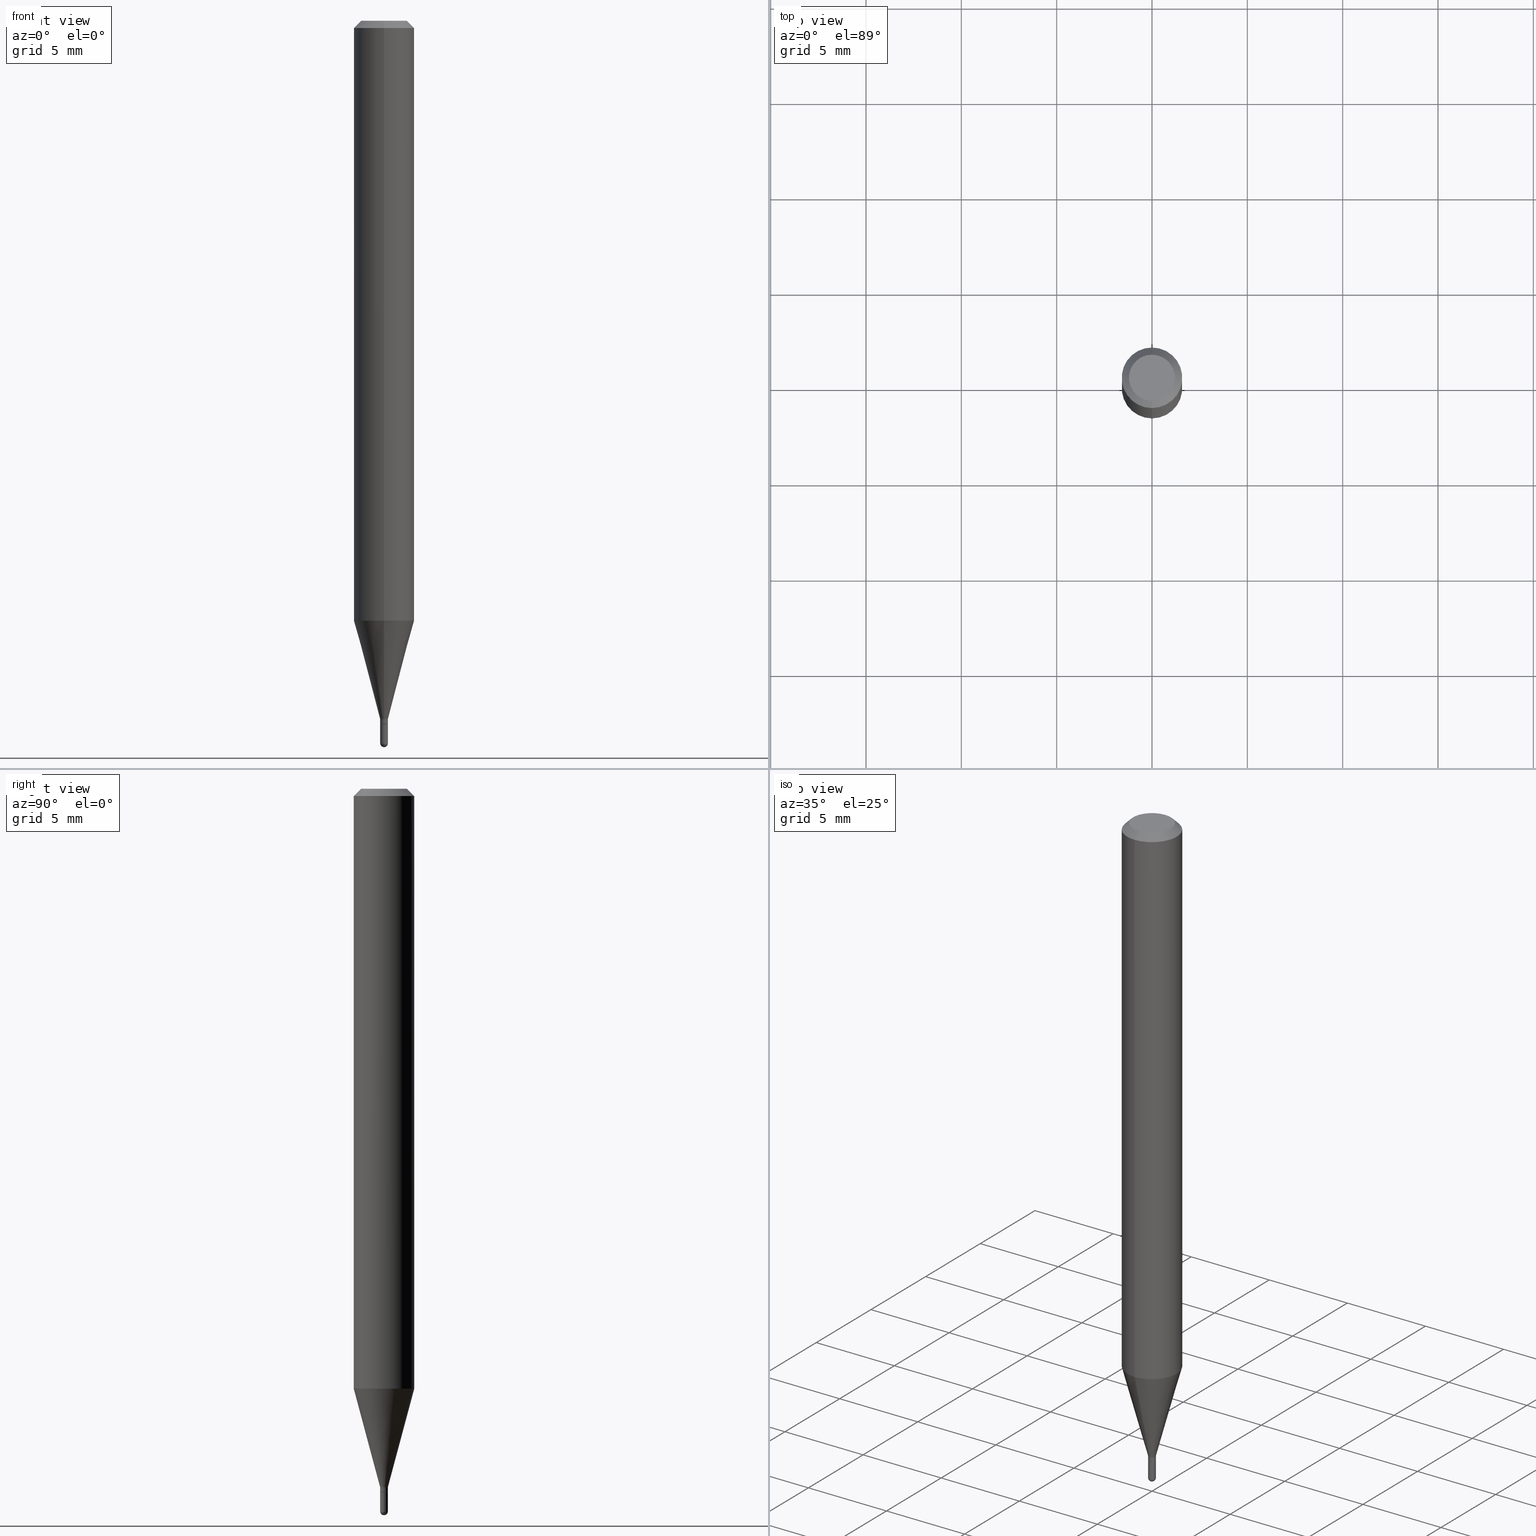
[diagram: canonical four-view strip — front | top / right | iso, engineering-drawing reading convention]
A machine part, canonical four-view strip (front | top / right | iso — engineering-drawing reading convention). The complete STEP part file that produces these views, byte-faithful:
ISO-10303-21;
HEADER;
FILE_DESCRIPTION (( 'STEP AP203' ),
    '1' );
FILE_NAME ('03151.STEP',
    '2024-03-08T18:21:46',
    ( '' ),
    ( '' ),
    'SwSTEP 2.0',
    'SolidWorks 2023',
    '' );
FILE_SCHEMA (( 'CONFIG_CONTROL_DESIGN' ));
ENDSEC;

DATA;
#1 = DIRECTION ( 'NONE',  ( -2.445468806185136877E-29, 3.491481338843145188E-15, 1.000000000000000000 ) ) ;
#2 = AXIS2_PLACEMENT_3D ( 'NONE', #432, #318, #216 ) ;
#3 = CARTESIAN_POINT ( 'NONE',  ( 0.000000000000000000, 0.000000000000000000, 0.000000000000000000 ) ) ;
#4 = AXIS2_PLACEMENT_3D ( 'NONE', #241, #128, #322 ) ;
#5 = EDGE_CURVE ( 'NONE', #29, #172, #358, .T. ) ;
#6 = CARTESIAN_POINT ( 'NONE',  ( 0.000000000000000000, 0.000000000000000000, 0.000000000000000000 ) ) ;
#7 = EDGE_LOOP ( 'NONE', ( #381, #251, #283, #338 ) ) ;
#8 = VERTEX_POINT ( 'NONE', #371 ) ;
#9 = CALENDAR_DATE ( 2024, 8, 3 ) ;
#10 = DIRECTION ( 'NONE',  ( 1.000000000000000000, -6.982962677686211490E-15, 0.000000000000000000 ) ) ;
#11 = ORIENTED_EDGE ( 'NONE', *, *, #93, .F. ) ;
#12 = EDGE_CURVE ( 'NONE', #157, #132, #222, .T. ) ;
#13 = DIRECTION ( 'NONE',  ( -2.445458081085281379E-29, 3.491496697796572887E-15, 1.000000000000000000 ) ) ;
#14 = DIRECTION ( 'NONE',  ( -2.445458081085281379E-29, 3.491496697796572887E-15, 1.000000000000000000 ) ) ;
#15 = AXIS2_PLACEMENT_3D ( 'NONE', #203, #321, #434 ) ;
#16 = COORDINATED_UNIVERSAL_TIME_OFFSET ( 5, 0, .BEHIND. ) ;
#17 = PERSON_AND_ORGANIZATION_ROLE ( 'creator' ) ;
#18 =( NAMED_UNIT ( * ) PLANE_ANGLE_UNIT ( ) SI_UNIT ( $, .RADIAN. ) );
#19 = CYLINDRICAL_SURFACE ( 'NONE', #196, 0.008000000000000000167 ) ;
#20 = AXIS2_PLACEMENT_3D ( 'NONE', #374, #180, #476 ) ;
#21 = AXIS2_PLACEMENT_3D ( 'NONE', #84, #236, #200 ) ;
#22 = PRODUCT ( '03151', '03151', '', ( #52 ) ) ;
#23 = CARTESIAN_POINT ( 'NONE',  ( -5.586370142145321943E-17, -0.008000000000005148826, -1.492000000000000437 ) ) ;
#24 = ADVANCED_FACE ( 'NONE', ( #474 ), #362, .T. ) ;
#25 = VECTOR ( 'NONE', #80, 39.37007874015748143 ) ;
#26 = LOCAL_TIME ( 13, 21, 46.00000000000000000, #491 ) ;
#27 = VERTEX_POINT ( 'NONE', #140 ) ;
#28 = EDGE_CURVE ( 'NONE', #85, #69, #94, .T. ) ;
#29 = VERTEX_POINT ( 'NONE', #91 ) ;
#30 = PRODUCT_RELATED_PRODUCT_CATEGORY ( 'detail', '', ( #22 ) ) ;
#31 = DIRECTION ( 'NONE',  ( 1.000000000000000000, -6.982962677686266711E-15, 4.876176775795935793E-29 ) ) ;
#32 = DIRECTION ( 'NONE',  ( -2.445458081085281379E-29, 3.491496697796572887E-15, 1.000000000000000000 ) ) ;
#33 = ORIENTED_EDGE ( 'NONE', *, *, #443, .F. ) ;
#34 = AXIS2_PLACEMENT_3D ( 'NONE', #171, #465, #150 ) ;
#35 = AXIS2_PLACEMENT_3D ( 'NONE', #463, #355, #126 ) ;
#36 = DIRECTION ( 'NONE',  ( -2.445458081085281379E-29, 3.491496697796572887E-15, 1.000000000000000000 ) ) ;
#37 = CARTESIAN_POINT ( 'NONE',  ( 4.440892098500930859E-16, 0.06249999999999995143, -0.01499999999999997863 ) ) ;
#38 = CARTESIAN_POINT ( 'NONE',  ( 3.647955325796880596E-29, -5.210269874993290915E-15, -1.491999999999999993 ) ) ;
#39 = DIRECTION ( 'NONE',  ( -2.445458081085281379E-29, 3.491496697796572887E-15, 1.000000000000000000 ) ) ;
#40 = VERTEX_POINT ( 'NONE', #294 ) ;
#41 = ORIENTED_EDGE ( 'NONE', *, *, #383, .F. ) ;
#42 = CC_DESIGN_PERSON_AND_ORGANIZATION_ASSIGNMENT ( #50, #327, ( #332 ) ) ;
#43 = DIRECTION ( 'NONE',  ( -2.445468806185136877E-29, 3.491481338843145188E-15, 1.000000000000000000 ) ) ;
#44 = DIRECTION ( 'NONE',  ( -6.982962677686265922E-15, -1.000000000000000000, 3.491496697796572887E-15 ) ) ;
#45 = CARTESIAN_POINT ( 'NONE',  ( 5.684341886084404481E-17, 0.007999999999994728342, -1.492000000000000437 ) ) ;
#46 = DIRECTION ( 'NONE',  ( -6.982962677686267499E-15, -1.000000000000000000, 0.000000000000000000 ) ) ;
#47 = ORIENTED_EDGE ( 'NONE', *, *, #348, .T. ) ;
#48 = CARTESIAN_POINT ( 'NONE',  ( -0.008000000000000000167, -5.082617111916303545E-15, -1.492000000000000437 ) ) ;
#49 = ORIENTED_EDGE ( 'NONE', *, *, #269, .F. ) ;
#50 = PERSON_AND_ORGANIZATION ( #398, #390 ) ;
#51 = DIRECTION ( 'NONE',  ( -2.445458081085281379E-29, 3.491496697796572887E-15, 1.000000000000000000 ) ) ;
#52 = MECHANICAL_CONTEXT ( 'NONE', #367, 'mechanical' ) ;
#53 = CLOSED_SHELL ( 'NONE', ( #24, #331, #344, #413, #323, #304, #364, #88, #261, #481, #500, #372 ) ) ;
#54 = AXIS2_PLACEMENT_3D ( 'NONE', #161, #36, #353 ) ;
#55 = DIRECTION ( 'NONE',  ( 1.000000000000000000, -6.982962677686211490E-15, 0.000000000000000000 ) ) ;
#56 = DIRECTION ( 'NONE',  ( 0.000000000000000000, 0.000000000000000000, 1.000000000000000000 ) ) ;
#57 = DIRECTION ( 'NONE',  ( -6.982962677686265922E-15, -1.000000000000000000, 0.000000000000000000 ) ) ;
#58 = ORIENTED_EDGE ( 'NONE', *, *, #93, .T. ) ;
#59 = EDGE_CURVE ( 'NONE', #246, #197, #141, .T. ) ;
#60 = DATE_TIME_ROLE ( 'creation_date' ) ;
#61 = EDGE_CURVE ( 'NONE', #422, #85, #401, .T. ) ;
#62 = PERSON_AND_ORGANIZATION ( #398, #390 ) ;
#63 = CARTESIAN_POINT ( 'NONE',  ( -4.287811248607203282E-16, -0.06250000000000005551, -0.01499999999999954321 ) ) ;
#64 = EDGE_CURVE ( 'NONE', #27, #227, #391, .T. ) ;
#65 = VECTOR ( 'NONE', #43, 39.37007874015748143 ) ;
#66 = DIRECTION ( 'NONE',  ( -2.445458081085281379E-29, 3.491496697796572887E-15, 1.000000000000000000 ) ) ;
#67 = CARTESIAN_POINT ( 'NONE',  ( 5.684341886084278756E-17, 0.007999999999994830691, -1.451500000000000457 ) ) ;
#68 = ORIENTED_EDGE ( 'NONE', *, *, #28, .T. ) ;
#69 = VERTEX_POINT ( 'NONE', #37 ) ;
#70 = CIRCLE ( 'NONE', #479, 0.007999999999999925573 ) ;
#71 = CIRCLE ( 'NONE', #311, 0.008000000000000000167 ) ;
#72 = CC_DESIGN_APPROVAL ( #340, ( #489 ) ) ;
#73 = APPROVAL_DATE_TIME ( #265, #340 ) ;
#74 = CARTESIAN_POINT ( 'NONE',  ( -5.586370142145434109E-17, -0.008000000000004959741, -1.441999999999999726 ) ) ;
#75 = ORIENTED_EDGE ( 'NONE', *, *, #473, .T. ) ;
#76 = DIRECTION ( 'NONE',  ( -1.000000000000000000, 6.982962677686265922E-15, -4.883557194083112340E-29 ) ) ;
#77 = EDGE_CURVE ( 'NONE', #197, #8, #424, .T. ) ;
#78 = CARTESIAN_POINT ( 'NONE',  ( -4.364351673553916201E-16, -0.06250000000000000000, 2.182185436122858054E-16 ) ) ;
#79 = CARTESIAN_POINT ( 'NONE',  ( 3.550820706580818935E-29, -5.069630904000248312E-15, -1.452000000000000179 ) ) ;
#80 = DIRECTION ( 'NONE',  ( -2.445458081085281379E-29, 3.491496697796572887E-15, 1.000000000000000000 ) ) ;
#81 = EDGE_CURVE ( 'NONE', #227, #190, #270, .T. ) ;
#82 = CIRCLE ( 'NONE', #151, 0.007999999999999923839 ) ;
#83 = AXIS2_PLACEMENT_3D ( 'NONE', #408, #149, #301 ) ;
#84 = CARTESIAN_POINT ( 'NONE',  ( 3.028952280476713504E-29, -4.324579090873010199E-15, -1.238603230987496584 ) ) ;
#85 = VERTEX_POINT ( 'NONE', #193 ) ;
#86 = PRODUCT_DEFINITION ( 'UNKNOWN', '', #332, #257 ) ;
#87 = EDGE_CURVE ( 'NONE', #490, #27, #354, .T. ) ;
#88 = ADVANCED_FACE ( 'NONE', ( #464 ), #308, .T. ) ;
#89 = DIRECTION ( 'NONE',  ( -6.982962677686265922E-15, -1.000000000000000000, 4.370956789862821150E-15 ) ) ;
#90 = ORIENTED_EDGE ( 'NONE', *, *, #12, .T. ) ;
#91 = CARTESIAN_POINT ( 'NONE',  ( 0.008000000000000000167, -5.195324232198600513E-15, -1.492000000000000437 ) ) ;
#92 = CARTESIAN_POINT ( 'NONE',  ( -5.586370142145429179E-17, -0.008000000000005020456, -1.451500000000000457 ) ) ;
#93 = EDGE_CURVE ( 'NONE', #69, #190, #378, .T. ) ;
#94 = LINE ( 'NONE', #218, #388 ) ;
#95 = DIRECTION ( 'NONE',  ( -6.982962677686265922E-15, -1.000000000000000000, 3.483106191921935554E-15 ) ) ;
#96 = AXIS2_PLACEMENT_3D ( 'NONE', #79, #428, #234 ) ;
#97 = ORIENTED_EDGE ( 'NONE', *, *, #269, .T. ) ;
#98 = DIMENSIONAL_EXPONENTS ( 1.000000000000000000, 0.000000000000000000, 0.000000000000000000, 0.000000000000000000, 0.000000000000000000, 0.000000000000000000, 0.000000000000000000 ) ;
#99 = EDGE_CURVE ( 'NONE', #508, #217, #328, .T. ) ;
#100 = CALENDAR_DATE ( 2024, 8, 3 ) ;
#101 = FACE_OUTER_BOUND ( 'NONE', #271, .T. ) ;
#102 = DATE_TIME_ROLE ( 'classification_date' ) ;
#103 = CARTESIAN_POINT ( 'NONE',  ( 3.549582404695286785E-29, -5.067907456851727530E-15, -1.451500000000000457 ) ) ;
#104 = FACE_OUTER_BOUND ( 'NONE', #421, .T. ) ;
#105 = AXIS2_PLACEMENT_3D ( 'NONE', #215, #175, #333 ) ;
#106 = CONICAL_SURFACE ( 'NONE', #15, 0.007999999999999923839, 0.2617993877991505736 ) ;
#107 = ADVANCED_BREP_SHAPE_REPRESENTATION ( '03151', ( #444, #448, #226 ), #412 ) ;
#108 = ADVANCED_FACE ( 'NONE', ( #274 ), #229, .T. ) ;
#109 = APPROVAL_STATUS ( 'not_yet_approved' ) ;
#110 = ORIENTED_EDGE ( 'NONE', *, *, #81, .T. ) ;
#111 = PERSON_AND_ORGANIZATION ( #398, #390 ) ;
#112 = CARTESIAN_POINT ( 'NONE',  ( -5.586370142148960564E-17, -0.007999999999999925573, 2.793197358237232144E-17 ) ) ;
#113 = CIRCLE ( 'NONE', #494, 0.007999999999999877001 ) ;
#114 = CIRCLE ( 'NONE', #54, 0.007500000000000001457 ) ;
#115 = AXIS2_PLACEMENT_3D ( 'NONE', #239, #471, #89 ) ;
#116 = ORIENTED_EDGE ( 'NONE', *, *, #156, .F. ) ;
#117 = CARTESIAN_POINT ( 'NONE',  ( 0.000000000000000000, 0.000000000000000000, 0.000000000000000000 ) ) ;
#118 = DIRECTION ( 'NONE',  ( -2.445458081085281379E-29, 3.491496697796572887E-15, 1.000000000000000000 ) ) ;
#119 = ORIENTED_EDGE ( 'NONE', *, *, #61, .T. ) ;
#120 = AXIS2_PLACEMENT_3D ( 'NONE', #511, #133, #286 ) ;
#121 = ORIENTED_EDGE ( 'NONE', *, *, #291, .F. ) ;
#122 = CARTESIAN_POINT ( 'NONE',  ( 5.506706202144299774E-17, 0.007499999999994930860, -1.452000000000000179 ) ) ;
#123 = DIRECTION ( 'NONE',  ( -2.445458081085281379E-29, 3.491496697796572887E-15, 1.000000000000000000 ) ) ;
#124 = ORIENTED_EDGE ( 'NONE', *, *, #210, .T. ) ;
#125 = DIRECTION ( 'NONE',  ( 6.982962677686265922E-15, 1.000000000000000000, -3.483106191921935554E-15 ) ) ;
#126 = DIRECTION ( 'NONE',  ( -6.982962677686265922E-15, -1.000000000000000000, 0.000000000000000000 ) ) ;
#127 = VECTOR ( 'NONE', #214, 39.37007874015748143 ) ;
#128 = DIRECTION ( 'NONE',  ( 2.445458081085281379E-29, -3.491496697796572887E-15, -1.000000000000000000 ) ) ;
#129 = CARTESIAN_POINT ( 'NONE',  ( 0.008000000000000000167, -5.125494605421738004E-15, -1.452000000000000179 ) ) ;
#130 = CARTESIAN_POINT ( 'NONE',  ( 0.000000000000000000, 0.000000000000000000, 0.000000000000000000 ) ) ;
#131 = DIRECTION ( 'NONE',  ( 1.000000000000000000, -6.982962677686211490E-15, 0.000000000000000000 ) ) ;
#132 = VERTEX_POINT ( 'NONE', #351 ) ;
#133 = DIRECTION ( 'NONE',  ( -2.445458081085281379E-29, 3.491496697796572887E-15, 1.000000000000000000 ) ) ;
#134 = DIRECTION ( 'NONE',  ( -2.445468806185136597E-29, 3.491481338843145583E-15, 1.000000000000000000 ) ) ;
#135 = ORIENTED_EDGE ( 'NONE', *, *, #28, .F. ) ;
#136 = ORIENTED_EDGE ( 'NONE', *, *, #386, .F. ) ;
#137 = ORIENTED_EDGE ( 'NONE', *, *, #59, .T. ) ;
#138 = DIRECTION ( 'NONE',  ( -6.982962677686265922E-15, -1.000000000000000000, 3.491496697796572493E-15 ) ) ;
#139 = PERSON_AND_ORGANIZATION_ROLE ( 'creator' ) ;
#140 = CARTESIAN_POINT ( 'NONE',  ( -5.586370142145434109E-17, -0.008000000000004959741, -1.441999999999999726 ) ) ;
#141 = LINE ( 'NONE', #445, #25 ) ;
#142 = ORIENTED_EDGE ( 'NONE', *, *, #61, .F. ) ;
#143 = APPLICATION_PROTOCOL_DEFINITION ( 'international standard', 'config_control_design', 1994, #367 ) ;
#144 = CARTESIAN_POINT ( 'NONE',  ( -5.856612206738854451E-45, 8.361763523269612628E-31, 2.394893722381746862E-16 ) ) ;
#145 = CC_DESIGN_PERSON_AND_ORGANIZATION_ASSIGNMENT ( #447, #17, ( #332 ) ) ;
#146 = PLANE ( 'NONE',  #423 ) ;
#147 = PERSON_AND_ORGANIZATION_ROLE ( 'classification_officer' ) ;
#148 = CIRCLE ( 'NONE', #174, 0.007500000000000001457 ) ;
#149 = DIRECTION ( 'NONE',  ( -2.445458081085281379E-29, 3.491496697796572887E-15, 1.000000000000000000 ) ) ;
#150 = DIRECTION ( 'NONE',  ( 1.000000000000000000, -6.982962677686211490E-15, 0.000000000000000000 ) ) ;
#151 = AXIS2_PLACEMENT_3D ( 'NONE', #505, #51, #320 ) ;
#152 = CIRCLE ( 'NONE', #452, 0.007999999999999923839 ) ;
#153 = ORIENTED_EDGE ( 'NONE', *, *, #156, .T. ) ;
#154 = ORIENTED_EDGE ( 'NONE', *, *, #250, .T. ) ;
#155 = CARTESIAN_POINT ( 'NONE',  ( 3.668187121627863477E-31, -5.237245046694775835E-17, -0.01499999999999976179 ) ) ;
#156 = EDGE_CURVE ( 'NONE', #197, #27, #82, .T. ) ;
#157 = VERTEX_POINT ( 'NONE', #48 ) ;
#158 = DIRECTION ( 'NONE',  ( -6.982962677686265922E-15, -1.000000000000000000, 3.483106191921935554E-15 ) ) ;
#159 = CIRCLE ( 'NONE', #164, 0.008000000000000000167 ) ;
#160 = ORIENTED_EDGE ( 'NONE', *, *, #295, .F. ) ;
#161 = CARTESIAN_POINT ( 'NONE',  ( 3.550805133735828966E-29, -5.069653205200624749E-15, -1.452000000000000179 ) ) ;
#162 = FACE_OUTER_BOUND ( 'NONE', #202, .T. ) ;
#163 = DIRECTION ( 'NONE',  ( -2.445458081085281099E-29, 3.491496697796572887E-15, 1.000000000000000000 ) ) ;
#164 = AXIS2_PLACEMENT_3D ( 'NONE', #395, #134, #10 ) ;
#165 = AXIS2_PLACEMENT_3D ( 'NONE', #3, #363, #400 ) ;
#166 = CYLINDRICAL_SURFACE ( 'NONE', #299, 0.06250000000000000000 ) ;
#167 = ORIENTED_EDGE ( 'NONE', *, *, #5, .T. ) ;
#168 = FACE_OUTER_BOUND ( 'NONE', #201, .T. ) ;
#169 = CARTESIAN_POINT ( 'NONE',  ( 3.316907271900976096E-16, 0.04749999999999999362, -4.610140702624983500E-17 ) ) ;
#170 = DIRECTION ( 'NONE',  ( 1.000000000000000000, -7.105427357601001070E-15, 4.926315508542082329E-29 ) ) ;
#171 = CARTESIAN_POINT ( 'NONE',  ( 3.648639458828225116E-29, -5.209290157553974120E-15, -1.492000000000000437 ) ) ;
#172 = VERTEX_POINT ( 'NONE', #45 ) ;
#173 = VERTEX_POINT ( 'NONE', #129 ) ;
#174 = AXIS2_PLACEMENT_3D ( 'NONE', #410, #66, #57 ) ;
#175 = DIRECTION ( 'NONE',  ( 1.000000000000000000, -6.982962677686265922E-15, 4.883557194083112340E-29 ) ) ;
#176 = CARTESIAN_POINT ( 'NONE',  ( 3.526350552924974695E-29, -5.034738238222656705E-15, -1.441999999999999726 ) ) ;
#177 = EDGE_CURVE ( 'NONE', #8, #69, #240, .T. ) ;
#178 = DATE_AND_TIME ( #100, #188 ) ;
#179 = DATE_AND_TIME ( #334, #262 ) ;
#180 = DIRECTION ( 'NONE',  ( -2.445458081085281379E-29, 3.491496697796572887E-15, 1.000000000000000000 ) ) ;
#181 = CARTESIAN_POINT ( 'NONE',  ( -0.008000000000000000167, 5.684341886080801605E-17, -3.935148072203924667E-31 ) ) ;
#182 = COORDINATED_UNIVERSAL_TIME_OFFSET ( 5, 0, .BEHIND. ) ;
#183 = CIRCLE ( 'NONE', #96, 0.008000000000000000167 ) ;
#184 = ADVANCED_FACE ( 'NONE', ( #399 ), #437, .T. ) ;
#185 = ORIENTED_EDGE ( 'NONE', *, *, #5, .F. ) ;
#186 = EDGE_CURVE ( 'NONE', #490, #246, #430, .T. ) ;
#187 = EDGE_CURVE ( 'NONE', #508, #172, #113, .T. ) ;
#188 = LOCAL_TIME ( 13, 21, 46.00000000000000000, #16 ) ;
#189 = CC_DESIGN_DATE_AND_TIME_ASSIGNMENT ( #446, #102, ( #489 ) ) ;
#190 = VERTEX_POINT ( 'NONE', #393 ) ;
#191 = ORIENTED_EDGE ( 'NONE', *, *, #59, .F. ) ;
#192 = DIRECTION ( 'NONE',  ( -6.982962677686266711E-15, -1.000000000000000000, 3.491496697796572493E-15 ) ) ;
#193 = CARTESIAN_POINT ( 'NONE',  ( 3.840629472727447874E-16, 0.04749999999999999362, 7.364327909283752044E-17 ) ) ;
#194 = EDGE_LOOP ( 'NONE', ( #97, #90, #33, #314, #167 ) ) ;
#195 = AXIS2_PLACEMENT_3D ( 'NONE', #457, #118, #192 ) ;
#196 = AXIS2_PLACEMENT_3D ( 'NONE', #492, #466, #361 ) ;
#197 = VERTEX_POINT ( 'NONE', #204 ) ;
#198 = CARTESIAN_POINT ( 'NONE',  ( 3.550805133735828966E-29, -5.069653205200624749E-15, -1.452000000000000179 ) ) ;
#199 = EDGE_LOOP ( 'NONE', ( #268, #488, #110, #11 ) ) ;
#200 = DIRECTION ( 'NONE',  ( -6.982962677686265922E-15, -1.000000000000000000, 4.370956789862821150E-15 ) ) ;
#201 = EDGE_LOOP ( 'NONE', ( #142, #376, #287, #135 ) ) ;
#202 = EDGE_LOOP ( 'NONE', ( #472, #206, #124, #211 ) ) ;
#203 = CARTESIAN_POINT ( 'NONE',  ( 3.526350552924974695E-29, -5.034738238222656705E-15, -1.441999999999999726 ) ) ;
#204 = CARTESIAN_POINT ( 'NONE',  ( 2.504663143554679306E-16, 0.007999999999994889671, -1.441999999999999726 ) ) ;
#205 = FACE_OUTER_BOUND ( 'NONE', #273, .T. ) ;
#206 = ORIENTED_EDGE ( 'NONE', *, *, #295, .T. ) ;
#207 = AXIS2_PLACEMENT_3D ( 'NONE', #38, #76, #456 ) ;
#208 = CC_DESIGN_APPROVAL ( #228, ( #332 ) ) ;
#209 = LINE ( 'NONE', #365, #65 ) ;
#210 = EDGE_CURVE ( 'NONE', #40, #490, #470, .T. ) ;
#211 = ORIENTED_EDGE ( 'NONE', *, *, #238, .F. ) ;
#212 = CARTESIAN_POINT ( 'NONE',  ( 3.668187121627863477E-31, -5.237245046694775835E-17, -0.01499999999999976179 ) ) ;
#213 = ORIENTED_EDGE ( 'NONE', *, *, #187, .T. ) ;
#214 = DIRECTION ( 'NONE',  ( -2.445458081085281379E-29, 3.491496697796572887E-15, 1.000000000000000000 ) ) ;
#215 = CARTESIAN_POINT ( 'NONE',  ( 3.647955325796880596E-29, -5.210269874993290915E-15, -1.491999999999999993 ) ) ;
#216 = DIRECTION ( 'NONE',  ( -6.982962677686265922E-15, -1.000000000000000000, 0.000000000000000000 ) ) ;
#217 = VERTEX_POINT ( 'NONE', #23 ) ;
#218 = CARTESIAN_POINT ( 'NONE',  ( 4.364351673553919652E-16, 0.06249999999999995143, -0.01499999999999997863 ) ) ;
#219 = VECTOR ( 'NONE', #224, 39.37007874015748143 ) ;
#220 = DIRECTION ( 'NONE',  ( 1.000000000000000000, 0.000000000000000000, 0.000000000000000000 ) ) ;
#221 = DIRECTION ( 'NONE',  ( 6.982962677686265922E-15, 1.000000000000000000, -3.491496697796572887E-15 ) ) ;
#222 = LINE ( 'NONE', #181, #235 ) ;
#223 = APPROVAL_ROLE ( '' ) ;
#224 = DIRECTION ( 'NONE',  ( -4.851104656540964275E-15, -0.7071067811865500152, -0.7071067811865450192 ) ) ;
#225 = VECTOR ( 'NONE', #266, 39.37007874015748854 ) ;
#226 = AXIS2_PLACEMENT_3D ( 'NONE', #255, #56, #220 ) ;
#227 = VERTEX_POINT ( 'NONE', #345 ) ;
#228 = APPROVAL ( #482, 'UNSPECIFIED' ) ;
#229 = CYLINDRICAL_SURFACE ( 'NONE', #417, 0.008000000000000000167 ) ;
#230 = ORIENTED_EDGE ( 'NONE', *, *, #99, .F. ) ;
#231 = DIRECTION ( 'NONE',  ( -2.445468806185136597E-29, 3.491481338843145583E-15, 1.000000000000000000 ) ) ;
#232 = ORIENTED_EDGE ( 'NONE', *, *, #509, .F. ) ;
#233 = DIRECTION ( 'NONE',  ( -2.445458081085281379E-29, 3.491496697796572887E-15, 1.000000000000000000 ) ) ;
#234 = DIRECTION ( 'NONE',  ( 1.000000000000000000, -6.982962677686211490E-15, 0.000000000000000000 ) ) ;
#235 = VECTOR ( 'NONE', #1, 39.37007874015748143 ) ;
#236 = DIRECTION ( 'NONE',  ( -2.445458081085281379E-29, 3.491496697796572887E-15, 1.000000000000000000 ) ) ;
#237 = ORIENTED_EDGE ( 'NONE', *, *, #380, .T. ) ;
#238 = EDGE_CURVE ( 'NONE', #246, #490, #70, .T. ) ;
#239 = CARTESIAN_POINT ( 'NONE',  ( 3.028952280476713504E-29, -4.324579090873010199E-15, -1.238603230987496584 ) ) ;
#240 = LINE ( 'NONE', #325, #127 ) ;
#241 = CARTESIAN_POINT ( 'NONE',  ( 3.668187121627863477E-31, -5.237245046694775835E-17, -0.01499999999999976179 ) ) ;
#242 = ORIENTED_EDGE ( 'NONE', *, *, #77, .F. ) ;
#243 = VECTOR ( 'NONE', #460, 39.37007874015748143 ) ;
#244 = CIRCLE ( 'NONE', #21, 0.06250000000000000000 ) ;
#245 = CARTESIAN_POINT ( 'NONE',  ( 5.329070518204302303E-17, 0.007499999999994930860, -1.452000000000000179 ) ) ;
#246 = VERTEX_POINT ( 'NONE', #67 ) ;
#247 = PERSON_AND_ORGANIZATION ( #398, #390 ) ;
#248 = FACE_OUTER_BOUND ( 'NONE', #7, .T. ) ;
#249 = DIRECTION ( 'NONE',  ( 7.105427357601000281E-15, 1.000000000000000000, 0.000000000000000000 ) ) ;
#250 = EDGE_CURVE ( 'NONE', #157, #217, #159, .T. ) ;
#251 = ORIENTED_EDGE ( 'NONE', *, *, #77, .T. ) ;
#252 = AXIS2_PLACEMENT_3D ( 'NONE', #415, #335, #55 ) ;
#253 = ORIENTED_EDGE ( 'NONE', *, *, #498, .T. ) ;
#254 = ADVANCED_FACE ( 'NONE', ( #356 ), #394, .T. ) ;
#255 = CARTESIAN_POINT ( 'NONE',  ( 0.000000000000000000, 0.000000000000000000, 0.000000000000000000 ) ) ;
#256 = PERSON_AND_ORGANIZATION_ROLE ( 'design_owner' ) ;
#257 = DESIGN_CONTEXT ( 'detailed design', #284, 'design' ) ;
#258 = LINE ( 'NONE', #63, #219 ) ;
#259 = PRODUCT_DEFINITION_SHAPE ( 'NONE', 'NONE',  #86 ) ;
#260 = CIRCLE ( 'NONE', #34, 0.008000000000000000167 ) ;
#261 = ADVANCED_FACE ( 'NONE', ( #277 ), #483, .F. ) ;
#262 = LOCAL_TIME ( 13, 21, 46.00000000000000000, #416 ) ;
#263 = CALENDAR_DATE ( 2024, 8, 3 ) ;
#264 = EDGE_CURVE ( 'NONE', #85, #422, #506, .T. ) ;
#265 = DATE_AND_TIME ( #263, #403 ) ;
#266 = DIRECTION ( 'NONE',  ( -1.807323732225332111E-15, -0.2588190451025184635, 0.9659258262890689783 ) ) ;
#267 = CONICAL_SURFACE ( 'NONE', #303, 0.007999999999999923839, 0.2617993877991505736 ) ;
#268 = ORIENTED_EDGE ( 'NONE', *, *, #177, .F. ) ;
#269 = EDGE_CURVE ( 'NONE', #172, #157, #260, .T. ) ;
#270 = LINE ( 'NONE', #78, #346 ) ;
#271 = EDGE_LOOP ( 'NONE', ( #253, #75, #407, #350 ) ) ;
#272 = FACE_OUTER_BOUND ( 'NONE', #199, .T. ) ;
#273 = EDGE_LOOP ( 'NONE', ( #237, #477, #504, #307 ) ) ;
#274 = FACE_OUTER_BOUND ( 'NONE', #405, .T. ) ;
#275 = FACE_OUTER_BOUND ( 'NONE', #455, .T. ) ;
#276 = DIRECTION ( 'NONE',  ( 1.000000000000000000, -6.982962677686211490E-15, 0.000000000000000000 ) ) ;
#277 = FACE_OUTER_BOUND ( 'NONE', #359, .T. ) ;
#278 = AXIS2_PLACEMENT_3D ( 'NONE', #281, #503, #158 ) ;
#279 = ORIENTED_EDGE ( 'NONE', *, *, #264, .F. ) ;
#280 = CIRCLE ( 'NONE', #402, 0.06250000000000000000 ) ;
#281 = CARTESIAN_POINT ( 'NONE',  ( 3.668187121627863477E-31, -5.237245046694775835E-17, -0.01499999999999976179 ) ) ;
#282 = DIRECTION ( 'NONE',  ( -2.445458081085281379E-29, 3.491496697796572887E-15, 1.000000000000000000 ) ) ;
#283 = ORIENTED_EDGE ( 'NONE', *, *, #380, .F. ) ;
#284 = APPLICATION_CONTEXT ( 'configuration controlled 3d designs of mechanical parts and assemblies' ) ;
#285 = LINE ( 'NONE', #245, #418 ) ;
#286 = DIRECTION ( 'NONE',  ( -6.982962677686265922E-15, -1.000000000000000000, 3.491496697796572887E-15 ) ) ;
#287 = ORIENTED_EDGE ( 'NONE', *, *, #436, .T. ) ;
#288 = AXIS2_PLACEMENT_3D ( 'NONE', #144, #123, #486 ) ;
#289 = AXIS2_PLACEMENT_3D ( 'NONE', #433, #315, #276 ) ;
#290 = APPLICATION_PROTOCOL_DEFINITION ( 'international standard', 'config_control_design', 1994, #284 ) ;
#291 = EDGE_CURVE ( 'NONE', #422, #190, #258, .T. ) ;
#292 = DIRECTION ( 'NONE',  ( -6.982962677686267499E-15, -1.000000000000000000, 0.000000000000000000 ) ) ;
#293 = APPROVAL_DATE_TIME ( #339, #228 ) ;
#294 = CARTESIAN_POINT ( 'NONE',  ( -5.237222008261149419E-17, -0.007500000000005071187, -1.452000000000000179 ) ) ;
#295 = EDGE_CURVE ( 'NONE', #420, #40, #148, .T. ) ;
#296 = APPROVAL_ROLE ( '' ) ;
#297 = ORIENTED_EDGE ( 'NONE', *, *, #64, .T. ) ;
#298 = CARTESIAN_POINT ( 'NONE',  ( 5.586370142152563440E-17, 0.007999999999994931305, -1.452000000000000179 ) ) ;
#299 = AXIS2_PLACEMENT_3D ( 'NONE', #6, #468, #357 ) ;
#300 = ADVANCED_FACE ( 'NONE', ( #375 ), #19, .T. ) ;
#301 = DIRECTION ( 'NONE',  ( -6.982962677686265922E-15, -1.000000000000000000, 0.000000000000000000 ) ) ;
#302 = AXIS2_PLACEMENT_3D ( 'NONE', #155, #510, #125 ) ;
#303 = AXIS2_PLACEMENT_3D ( 'NONE', #176, #14, #292 ) ;
#304 = ADVANCED_FACE ( 'NONE', ( #275 ), #106, .T. ) ;
#305 = APPROVAL_PERSON_ORGANIZATION ( #450, #340, #223 ) ;
#306 = ORIENTED_EDGE ( 'NONE', *, *, #99, .T. ) ;
#307 = ORIENTED_EDGE ( 'NONE', *, *, #81, .F. ) ;
#308 = CONICAL_SURFACE ( 'NONE', #302, 0.06250000000000000000, 0.7853981633974483900 ) ;
#309 = CARTESIAN_POINT ( 'NONE',  ( 5.684341886084273826E-17, 0.007999999999994889671, -1.441999999999999726 ) ) ;
#310 = DIRECTION ( 'NONE',  ( -6.982962677686265922E-15, -1.000000000000000000, 0.000000000000000000 ) ) ;
#311 = AXIS2_PLACEMENT_3D ( 'NONE', #317, #324, #131 ) ;
#312 = EDGE_LOOP ( 'NONE', ( #392, #137, #41, #352 ) ) ;
#313 = CARTESIAN_POINT ( 'NONE',  ( 3.526350552924974695E-29, -5.034738238222656705E-15, -1.441999999999999726 ) ) ;
#314 = ORIENTED_EDGE ( 'NONE', *, *, #348, .F. ) ;
#315 = DIRECTION ( 'NONE',  ( -2.445468806185136597E-29, 3.491481338843145583E-15, 1.000000000000000000 ) ) ;
#316 = CC_DESIGN_DATE_AND_TIME_ASSIGNMENT ( #179, #60, ( #86 ) ) ;
#317 = CARTESIAN_POINT ( 'NONE',  ( 3.648639458828225116E-29, -5.209290157553974120E-15, -1.492000000000000437 ) ) ;
#318 = DIRECTION ( 'NONE',  ( 1.000000000000000000, -6.982962677686265922E-15, 4.883557194083112340E-29 ) ) ;
#319 = VECTOR ( 'NONE', #233, 39.37007874015748143 ) ;
#320 = DIRECTION ( 'NONE',  ( -6.982962677686267499E-15, -1.000000000000000000, 0.000000000000000000 ) ) ;
#321 = DIRECTION ( 'NONE',  ( -2.445458081085281379E-29, 3.491496697796572887E-15, 1.000000000000000000 ) ) ;
#322 = DIRECTION ( 'NONE',  ( 6.982962677686265922E-15, 1.000000000000000000, -3.483106191921935554E-15 ) ) ;
#323 = ADVANCED_FACE ( 'NONE', ( #248 ), #267, .T. ) ;
#324 = DIRECTION ( 'NONE',  ( -2.445468806185136597E-29, 3.491481338843145583E-15, 1.000000000000000000 ) ) ;
#325 = CARTESIAN_POINT ( 'NONE',  ( 4.440892098500625669E-16, 0.06250000000000000000, -2.182185436122858054E-16 ) ) ;
#326 = EDGE_LOOP ( 'NONE', ( #191, #501, #495, #116 ) ) ;
#327 = PERSON_AND_ORGANIZATION_ROLE ( 'design_supplier' ) ;
#328 = CIRCLE ( 'NONE', #207, 0.007999999999999877001 ) ;
#329 = APPROVAL_PERSON_ORGANIZATION ( #62, #228, #296 ) ;
#330 = DIRECTION ( 'NONE',  ( 2.438088387897960049E-29, -3.491481338843145188E-15, -1.000000000000000000 ) ) ;
#331 = ADVANCED_FACE ( 'NONE', ( #101 ), #385, .T. ) ;
#332 = PRODUCT_DEFINITION_FORMATION_WITH_SPECIFIED_SOURCE ( 'ANY', '', #22, .NOT_KNOWN. ) ;
#333 = DIRECTION ( 'NONE',  ( -6.982962677686265922E-15, -1.000000000000000000, 0.000000000000000000 ) ) ;
#334 = CALENDAR_DATE ( 2024, 8, 3 ) ;
#335 = DIRECTION ( 'NONE',  ( -2.445468806185136597E-29, 3.491481338843145583E-15, 1.000000000000000000 ) ) ;
#336 = APPROVAL_DATE_TIME ( #178, #497 ) ;
#337 = DIRECTION ( 'NONE',  ( 2.445458081085281099E-29, -3.491496697796572887E-15, -1.000000000000000000 ) ) ;
#338 = ORIENTED_EDGE ( 'NONE', *, *, #64, .F. ) ;
#339 = DATE_AND_TIME ( #9, #26 ) ;
#340 = APPROVAL ( #109, 'UNSPECIFIED' ) ;
#341 = AXIS2_PLACEMENT_3D ( 'NONE', #130, #13, #138 ) ;
#342 = CONICAL_SURFACE ( 'NONE', #4, 0.06250000000000000000, 0.7853981633974483900 ) ;
#343 = ADVANCED_FACE ( 'NONE', ( #104 ), #146, .F. ) ;
#344 = ADVANCED_FACE ( 'NONE', ( #168 ), #342, .T. ) ;
#345 = CARTESIAN_POINT ( 'NONE',  ( -4.364351673553613969E-16, -0.06250000000000432987, -1.238603230987496362 ) ) ;
#346 = VECTOR ( 'NONE', #32, 39.37007874015748143 ) ;
#347 = CIRCLE ( 'NONE', #115, 0.06250000000000000000 ) ;
#348 = EDGE_CURVE ( 'NONE', #29, #173, #209, .T. ) ;
#349 = CARTESIAN_POINT ( 'NONE',  ( -5.237222008261149419E-17, -0.007500000000005071187, -1.452000000000000179 ) ) ;
#350 = ORIENTED_EDGE ( 'NONE', *, *, #210, .F. ) ;
#351 = CARTESIAN_POINT ( 'NONE',  ( -0.008000000000000000167, -5.082617111916303545E-15, -1.452000000000000179 ) ) ;
#352 = ORIENTED_EDGE ( 'NONE', *, *, #87, .F. ) ;
#353 = DIRECTION ( 'NONE',  ( -6.982962677686265922E-15, -1.000000000000000000, 0.000000000000000000 ) ) ;
#354 = LINE ( 'NONE', #112, #319 ) ;
#355 = DIRECTION ( 'NONE',  ( -2.445458081085281379E-29, 3.491496697796572887E-15, 1.000000000000000000 ) ) ;
#356 = FACE_OUTER_BOUND ( 'NONE', #425, .T. ) ;
#357 = DIRECTION ( 'NONE',  ( -6.982962677686265922E-15, -1.000000000000000000, 3.491496697796572887E-15 ) ) ;
#358 = CIRCLE ( 'NONE', #252, 0.008000000000000000167 ) ;
#359 = EDGE_LOOP ( 'NONE', ( #502, #119 ) ) ;
#360 = AXIS2_PLACEMENT_3D ( 'NONE', #198, #163, #44 ) ;
#361 = DIRECTION ( 'NONE',  ( 1.000000000000000000, -6.982962677686266711E-15, 4.876176775795935793E-29 ) ) ;
#362 = CYLINDRICAL_SURFACE ( 'NONE', #341, 0.007999999999999925573 ) ;
#363 = DIRECTION ( 'NONE',  ( -2.445458081085281379E-29, 3.491496697796572887E-15, 1.000000000000000000 ) ) ;
#364 = ADVANCED_FACE ( 'NONE', ( #272 ), #475, .T. ) ;
#365 = CARTESIAN_POINT ( 'NONE',  ( 0.008000000000000000167, -5.586370142149013566E-17, 3.900941420636748599E-31 ) ) ;
#366 = ORIENTED_EDGE ( 'NONE', *, *, #12, .F. ) ;
#367 = APPLICATION_CONTEXT ( 'configuration controlled 3d designs of mechanical parts and assemblies' ) ;
#368 =( LENGTH_UNIT ( ) NAMED_UNIT ( * ) SI_UNIT ( $, .METRE. ) );
#369 = CC_DESIGN_SECURITY_CLASSIFICATION ( #489, ( #332 ) ) ;
#370 = PERSON_AND_ORGANIZATION ( #398, #390 ) ;
#371 = CARTESIAN_POINT ( 'NONE',  ( 4.440892098500926915E-16, 0.06249999999999566319, -1.238603230987496806 ) ) ;
#372 = ADVANCED_FACE ( 'NONE', ( #461 ), #397, .T. ) ;
#373 = APPROVAL_STATUS ( 'not_yet_approved' ) ;
#374 = CARTESIAN_POINT ( 'NONE',  ( 3.549582404695286785E-29, -5.067907456851727530E-15, -1.451500000000000457 ) ) ;
#375 = FACE_OUTER_BOUND ( 'NONE', #194, .T. ) ;
#376 = ORIENTED_EDGE ( 'NONE', *, *, #291, .T. ) ;
#377 =( CONVERSION_BASED_UNIT ( 'INCH', #451 ) LENGTH_UNIT ( ) NAMED_UNIT ( #98 ) );
#378 = CIRCLE ( 'NONE', #278, 0.06250000000000000000 ) ;
#379 = DIRECTION ( 'NONE',  ( -4.937700262164674260E-15, -0.7071067811865632269, 0.7071067811865319186 ) ) ;
#380 = EDGE_CURVE ( 'NONE', #227, #8, #347, .T. ) ;
#381 = ORIENTED_EDGE ( 'NONE', *, *, #383, .T. ) ;
#382 = ORIENTED_EDGE ( 'NONE', *, *, #443, .T. ) ;
#383 = EDGE_CURVE ( 'NONE', #27, #197, #152, .T. ) ;
#384 = VECTOR ( 'NONE', #379, 39.37007874015748143 ) ;
#385 = CONICAL_SURFACE ( 'NONE', #83, 0.007500000000000001457, 0.7853981633974739252 ) ;
#386 = EDGE_CURVE ( 'NONE', #132, #173, #496, .T. ) ;
#387 = EDGE_LOOP ( 'NONE', ( #453, #160 ) ) ;
#388 = VECTOR ( 'NONE', #467, 39.37007874015748143 ) ;
#389 = DIRECTION ( 'NONE',  ( 5.024295867788190974E-15, 0.7071067811865681119, 0.7071067811865270336 ) ) ;
#390 = ORGANIZATION ( 'UNSPECIFIED', 'UNSPECIFIED', '' ) ;
#391 = LINE ( 'NONE', #74, #225 ) ;
#392 = ORIENTED_EDGE ( 'NONE', *, *, #186, .T. ) ;
#393 = CARTESIAN_POINT ( 'NONE',  ( -4.364351673553912750E-16, -0.06250000000000005551, -0.01499999999999954321 ) ) ;
#394 = SPHERICAL_SURFACE ( 'NONE', #2, 0.007999999999999877001 ) ;
#395 = CARTESIAN_POINT ( 'NONE',  ( 3.648639458828225116E-29, -5.209290157553974120E-15, -1.492000000000000437 ) ) ;
#396 = ORIENTED_EDGE ( 'NONE', *, *, #250, .F. ) ;
#397 = CYLINDRICAL_SURFACE ( 'NONE', #165, 0.007999999999999925573 ) ;
#398 = PERSON ( 'UNSPECIFIED', 'UNSPECIFIED', 'UNSPECIFIED', ('UNSPECIFIED'), ('UNSPECIFIED'), ('UNSPECIFIED') ) ;
#399 = FACE_OUTER_BOUND ( 'NONE', #462, .T. ) ;
#400 = DIRECTION ( 'NONE',  ( -6.982962677686265922E-15, -1.000000000000000000, 3.491496697796572493E-15 ) ) ;
#401 = CIRCLE ( 'NONE', #195, 0.04749999999999999362 ) ;
#402 = AXIS2_PLACEMENT_3D ( 'NONE', #212, #39, #95 ) ;
#403 = LOCAL_TIME ( 13, 21, 46.00000000000000000, #182 ) ;
#404 = PLANE ( 'NONE',  #360 ) ;
#405 = EDGE_LOOP ( 'NONE', ( #366, #154, #429, #47, #136 ) ) ;
#406 = PERSON_AND_ORGANIZATION ( #398, #390 ) ;
#407 = ORIENTED_EDGE ( 'NONE', *, *, #186, .F. ) ;
#408 = CARTESIAN_POINT ( 'NONE',  ( 3.550805133735828966E-29, -5.069653205200624749E-15, -1.452000000000000179 ) ) ;
#409 = UNCERTAINTY_MEASURE_WITH_UNIT (LENGTH_MEASURE( 1.000000000000000082E-05 ), #377, 'distance_accuracy_value', 'NONE');
#410 = CARTESIAN_POINT ( 'NONE',  ( 3.550805133735828966E-29, -5.069653205200624749E-15, -1.452000000000000179 ) ) ;
#411 = CC_DESIGN_PERSON_AND_ORGANIZATION_ASSIGNMENT ( #406, #139, ( #86 ) ) ;
#412 =( GEOMETRIC_REPRESENTATION_CONTEXT ( 3 ) GLOBAL_UNCERTAINTY_ASSIGNED_CONTEXT ( ( #409 ) ) GLOBAL_UNIT_ASSIGNED_CONTEXT ( ( #377, #18, #414 ) ) REPRESENTATION_CONTEXT ( 'NONE', 'WORKASPACE' ) );
#413 = ADVANCED_FACE ( 'NONE', ( #205 ), #166, .T. ) ;
#414 =( NAMED_UNIT ( * ) SI_UNIT ( $, .STERADIAN. ) SOLID_ANGLE_UNIT ( ) );
#415 = CARTESIAN_POINT ( 'NONE',  ( 3.648639458828225116E-29, -5.209290157553974120E-15, -1.492000000000000437 ) ) ;
#416 = COORDINATED_UNIVERSAL_TIME_OFFSET ( 5, 0, .BEHIND. ) ;
#417 = AXIS2_PLACEMENT_3D ( 'NONE', #117, #231, #31 ) ;
#418 = VECTOR ( 'NONE', #389, 39.37007874015748143 ) ;
#419 = CC_DESIGN_PERSON_AND_ORGANIZATION_ASSIGNMENT ( #111, #256, ( #22 ) ) ;
#420 = VERTEX_POINT ( 'NONE', #122 ) ;
#421 = EDGE_LOOP ( 'NONE', ( #382, #480 ) ) ;
#422 = VERTEX_POINT ( 'NONE', #438 ) ;
#423 = AXIS2_PLACEMENT_3D ( 'NONE', #298, #330, #512 ) ;
#424 = LINE ( 'NONE', #309, #243 ) ;
#425 = EDGE_LOOP ( 'NONE', ( #426, #306, #396, #49 ) ) ;
#426 = ORIENTED_EDGE ( 'NONE', *, *, #187, .F. ) ;
#427 = EDGE_CURVE ( 'NONE', #217, #29, #71, .T. ) ;
#428 = DIRECTION ( 'NONE',  ( -2.445468806185136597E-29, 3.491481338843145583E-15, 1.000000000000000000 ) ) ;
#429 = ORIENTED_EDGE ( 'NONE', *, *, #427, .T. ) ;
#430 = CIRCLE ( 'NONE', #20, 0.007999999999999925573 ) ;
#431 = CARTESIAN_POINT ( 'NONE',  ( 3.667177009730689517E-29, -5.238691584423694948E-15, -1.499999999999999778 ) ) ;
#432 = CARTESIAN_POINT ( 'NONE',  ( 3.647955325796880596E-29, -5.210269874993290915E-15, -1.491999999999999993 ) ) ;
#433 = CARTESIAN_POINT ( 'NONE',  ( 3.550820706580818935E-29, -5.069630904000248312E-15, -1.452000000000000179 ) ) ;
#434 = DIRECTION ( 'NONE',  ( -6.982962677686267499E-15, -1.000000000000000000, 0.000000000000000000 ) ) ;
#435 = FACE_OUTER_BOUND ( 'NONE', #387, .T. ) ;
#436 = EDGE_CURVE ( 'NONE', #190, #69, #280, .T. ) ;
#437 = SPHERICAL_SURFACE ( 'NONE', #105, 0.007999999999999877001 ) ;
#438 = CARTESIAN_POINT ( 'NONE',  ( -3.773273898774340269E-16, -0.04749999999999999362, 4.053354653835118520E-16 ) ) ;
#439 = CARTESIAN_POINT ( 'NONE',  ( 3.647955325796880596E-29, -5.210269874993290915E-15, -1.491999999999999993 ) ) ;
#440 = AXIS2_PLACEMENT_3D ( 'NONE', #169, #337, #221 ) ;
#441 = EDGE_LOOP ( 'NONE', ( #121, #279, #68, #58 ) ) ;
#442 = CALENDAR_DATE ( 2024, 8, 3 ) ;
#443 = EDGE_CURVE ( 'NONE', #173, #132, #183, .T. ) ;
#444 = MANIFOLD_SOLID_BREP ( 'Body-Move/Copy2[1]', #487 ) ;
#445 = CARTESIAN_POINT ( 'NONE',  ( 5.684341886080747371E-17, 0.007999999999999925573, -2.793197358237232144E-17 ) ) ;
#446 = DATE_AND_TIME ( #442, #507 ) ;
#447 = PERSON_AND_ORGANIZATION ( #398, #390 ) ;
#448 = MANIFOLD_SOLID_BREP ( 'Body-Move/Copy2[2]', #53 ) ;
#449 = APPROVAL_PERSON_ORGANIZATION ( #370, #497, #484 ) ;
#450 = PERSON_AND_ORGANIZATION ( #398, #390 ) ;
#451 = LENGTH_MEASURE_WITH_UNIT ( LENGTH_MEASURE( 0.02539999999999999897 ), #368 );
#452 = AXIS2_PLACEMENT_3D ( 'NONE', #313, #282, #46 ) ;
#453 = ORIENTED_EDGE ( 'NONE', *, *, #498, .F. ) ;
#454 = CC_DESIGN_PERSON_AND_ORGANIZATION_ASSIGNMENT ( #247, #147, ( #489 ) ) ;
#455 = EDGE_LOOP ( 'NONE', ( #242, #153, #297, #232 ) ) ;
#456 = DIRECTION ( 'NONE',  ( -6.982962677686266711E-15, -1.000000000000000000, 0.000000000000000000 ) ) ;
#457 = CARTESIAN_POINT ( 'NONE',  ( -5.856612206738854451E-45, 8.361763523269612628E-31, 2.394893722381746862E-16 ) ) ;
#458 = SHAPE_DEFINITION_REPRESENTATION ( #259, #107 ) ;
#459 = CONICAL_SURFACE ( 'NONE', #35, 0.007500000000000001457, 0.7853981633974739252 ) ;
#460 = DIRECTION ( 'NONE',  ( 1.839019923739602287E-15, 0.2588190451025252359, 0.9659258262890670910 ) ) ;
#461 = FACE_OUTER_BOUND ( 'NONE', #326, .T. ) ;
#462 = EDGE_LOOP ( 'NONE', ( #230, #213, #185, #499 ) ) ;
#463 = CARTESIAN_POINT ( 'NONE',  ( 3.550805133735828966E-29, -5.069653205200624749E-15, -1.452000000000000179 ) ) ;
#464 = FACE_OUTER_BOUND ( 'NONE', #441, .T. ) ;
#465 = DIRECTION ( 'NONE',  ( -2.445468806185136597E-29, 3.491481338843145583E-15, 1.000000000000000000 ) ) ;
#466 = DIRECTION ( 'NONE',  ( -2.445468806185136597E-29, 3.491481338843145583E-15, 1.000000000000000000 ) ) ;
#467 = DIRECTION ( 'NONE',  ( 4.937700262164548042E-15, 0.7071067811865451302, -0.7071067811865499042 ) ) ;
#468 = DIRECTION ( 'NONE',  ( -2.445458081085281379E-29, 3.491496697796572887E-15, 1.000000000000000000 ) ) ;
#469 = CC_DESIGN_APPROVAL ( #497, ( #86 ) ) ;
#470 = LINE ( 'NONE', #349, #384 ) ;
#471 = DIRECTION ( 'NONE',  ( -2.445458081085281379E-29, 3.491496697796572887E-15, 1.000000000000000000 ) ) ;
#472 = ORIENTED_EDGE ( 'NONE', *, *, #473, .F. ) ;
#473 = EDGE_CURVE ( 'NONE', #420, #246, #285, .T. ) ;
#474 = FACE_OUTER_BOUND ( 'NONE', #312, .T. ) ;
#475 = CYLINDRICAL_SURFACE ( 'NONE', #120, 0.06250000000000000000 ) ;
#476 = DIRECTION ( 'NONE',  ( -6.982962677686265922E-15, -1.000000000000000000, 0.000000000000000000 ) ) ;
#477 = ORIENTED_EDGE ( 'NONE', *, *, #177, .T. ) ;
#478 = COORDINATED_UNIVERSAL_TIME_OFFSET ( 5, 0, .BEHIND. ) ;
#479 = AXIS2_PLACEMENT_3D ( 'NONE', #103, #493, #310 ) ;
#480 = ORIENTED_EDGE ( 'NONE', *, *, #386, .T. ) ;
#481 = ADVANCED_FACE ( 'NONE', ( #435 ), #404, .F. ) ;
#482 = APPROVAL_STATUS ( 'not_yet_approved' ) ;
#483 = PLANE ( 'NONE',  #440 ) ;
#484 = APPROVAL_ROLE ( '' ) ;
#485 = SECURITY_CLASSIFICATION_LEVEL ( 'unclassified' ) ;
#486 = DIRECTION ( 'NONE',  ( -6.982962677686266711E-15, -1.000000000000000000, 3.491496697796572493E-15 ) ) ;
#487 = CLOSED_SHELL ( 'NONE', ( #300, #184, #343, #254, #108 ) ) ;
#488 = ORIENTED_EDGE ( 'NONE', *, *, #509, .T. ) ;
#489 = SECURITY_CLASSIFICATION ( '', '', #485 ) ;
#490 = VERTEX_POINT ( 'NONE', #92 ) ;
#491 = COORDINATED_UNIVERSAL_TIME_OFFSET ( 5, 0, .BEHIND. ) ;
#492 = CARTESIAN_POINT ( 'NONE',  ( 0.000000000000000000, 0.000000000000000000, 0.000000000000000000 ) ) ;
#493 = DIRECTION ( 'NONE',  ( -2.445458081085281379E-29, 3.491496697796572887E-15, 1.000000000000000000 ) ) ;
#494 = AXIS2_PLACEMENT_3D ( 'NONE', #439, #170, #249 ) ;
#495 = ORIENTED_EDGE ( 'NONE', *, *, #87, .T. ) ;
#496 = CIRCLE ( 'NONE', #289, 0.008000000000000000167 ) ;
#497 = APPROVAL ( #373, 'UNSPECIFIED' ) ;
#498 = EDGE_CURVE ( 'NONE', #40, #420, #114, .T. ) ;
#499 = ORIENTED_EDGE ( 'NONE', *, *, #427, .F. ) ;
#500 = ADVANCED_FACE ( 'NONE', ( #162 ), #459, .T. ) ;
#501 = ORIENTED_EDGE ( 'NONE', *, *, #238, .T. ) ;
#502 = ORIENTED_EDGE ( 'NONE', *, *, #264, .T. ) ;
#503 = DIRECTION ( 'NONE',  ( -2.445458081085281379E-29, 3.491496697796572887E-15, 1.000000000000000000 ) ) ;
#504 = ORIENTED_EDGE ( 'NONE', *, *, #436, .F. ) ;
#505 = CARTESIAN_POINT ( 'NONE',  ( 3.526350552924974695E-29, -5.034738238222656705E-15, -1.441999999999999726 ) ) ;
#506 = CIRCLE ( 'NONE', #288, 0.04749999999999999362 ) ;
#507 = LOCAL_TIME ( 13, 21, 46.00000000000000000, #478 ) ;
#508 = VERTEX_POINT ( 'NONE', #431 ) ;
#509 = EDGE_CURVE ( 'NONE', #8, #227, #244, .T. ) ;
#510 = DIRECTION ( 'NONE',  ( 2.445458081085281379E-29, -3.491496697796572887E-15, -1.000000000000000000 ) ) ;
#511 = CARTESIAN_POINT ( 'NONE',  ( 0.000000000000000000, 0.000000000000000000, 0.000000000000000000 ) ) ;
#512 = DIRECTION ( 'NONE',  ( -1.000000000000000000, 6.982962677686265922E-15, -4.876176775795935793E-29 ) ) ;
ENDSEC;
END-ISO-10303-21;
